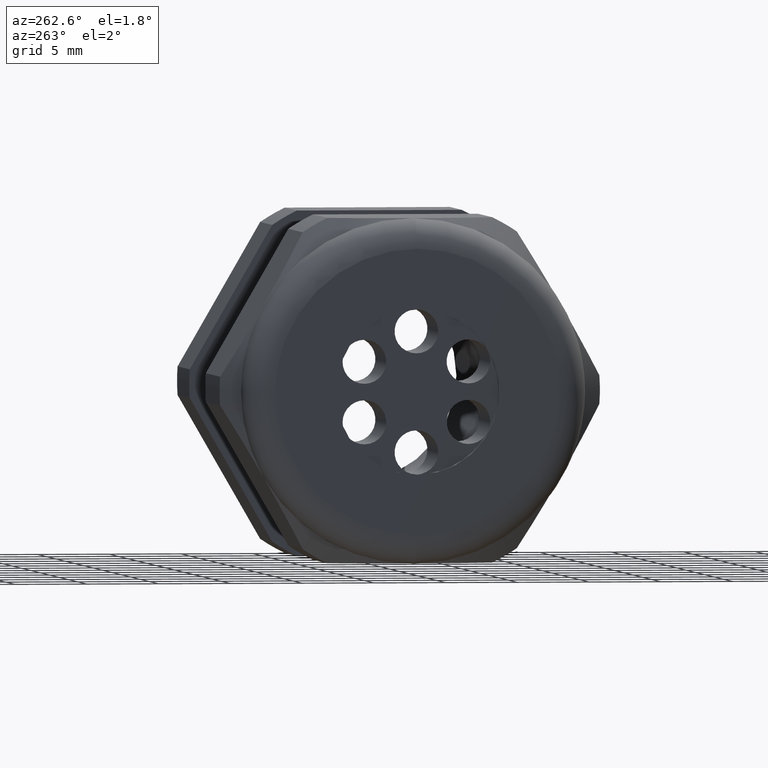
[diagram: clean part render]
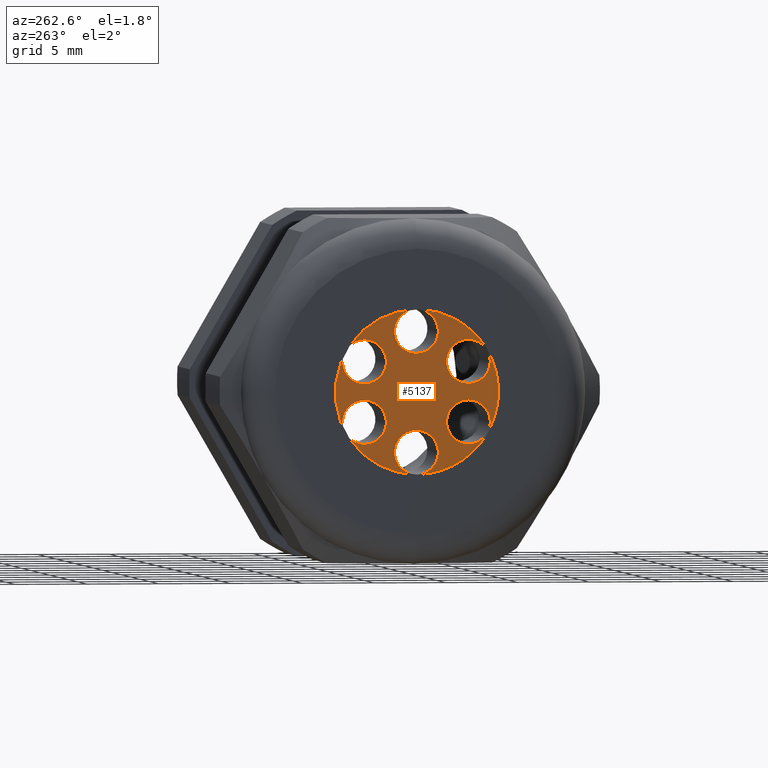
[diagram: same view with one face highlighted and labeled with its STEP entity id]
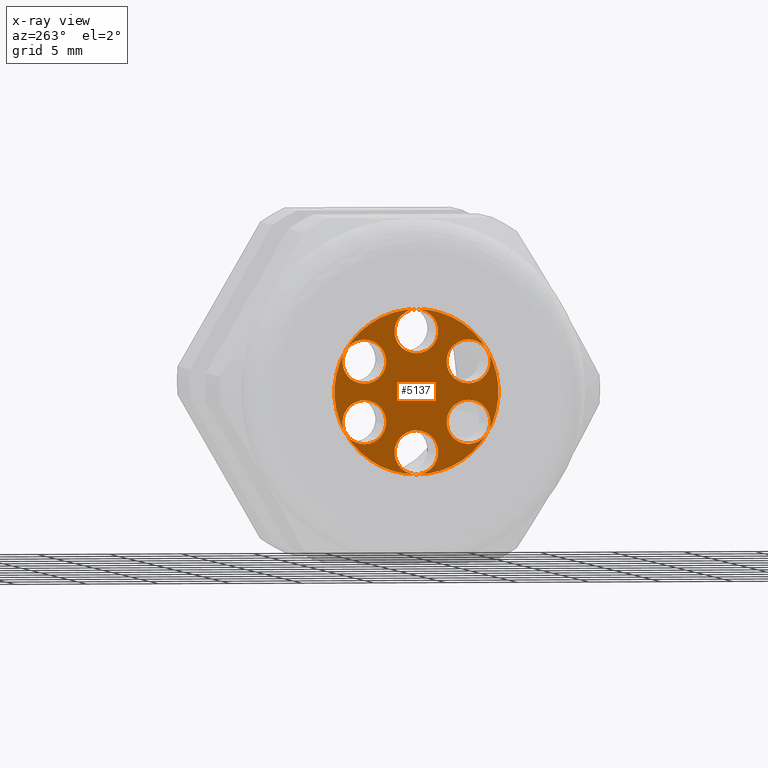
[diagram: x-ray of the same camera — body ghosted, the highlighted face saturated]
A machine part, auxiliary view. The second image highlights one B-rep face of the part: STEP entity #5137.
The next image is the same camera in x-ray: the body ghosted, the highlighted face saturated — about 0% of this face is hidden behind the body in this view.
In plain terms, the highlighted planar face has unit normal (-1, 0, 0).
Its self-contained STEP definition (entity closure, byte-faithful):
#94 = EDGE_CURVE ( 'NONE', #3335, #5071, #4545, .T. ) ;
#95 = ORIENTED_EDGE ( 'NONE', *, *, #3344, .F. ) ;
#99 = EDGE_CURVE ( 'NONE', #5101, #3434, #4599, .T. ) ;
#100 = ORIENTED_EDGE ( 'NONE', *, *, #99, .F. ) ;
#104 = ORIENTED_EDGE ( 'NONE', *, *, #94, .F. ) ;
#110 = EDGE_LOOP ( 'NONE', ( #104, #95 ) ) ;
#113 = ORIENTED_EDGE ( 'NONE', *, *, #3436, .F. ) ;
#122 = EDGE_LOOP ( 'NONE', ( #127, #126 ) ) ;
#126 = ORIENTED_EDGE ( 'NONE', *, *, #3438, .T. ) ;
#127 = ORIENTED_EDGE ( 'NONE', *, *, #5129, .T. ) ;
#713 = DIRECTION ( 'NONE',  ( 0.0000000000000000000, 0.0000000000000000000, 1.000000000000000000 ) ) ;
#714 = DIRECTION ( 'NONE',  ( -1.000000000000000000, 0.0000000000000000000, 0.0000000000000000000 ) ) ;
#715 = CARTESIAN_POINT ( 'NONE',  ( -1.350000000000000100, 0.0000000000000000000, -0.1647599999999999900 ) ) ;
#716 = AXIS2_PLACEMENT_3D ( 'NONE', #715, #714, #713 ) ;
#717 = CIRCLE ( 'NONE', #716, 0.06000000000000001200 ) ;
#718 = CARTESIAN_POINT ( 'NONE',  ( -1.350000000000000100, -0.1426863455275237400, 0.02238000000000066300 ) ) ;
#721 = CARTESIAN_POINT ( 'NONE',  ( -1.350000000000000100, 0.0000000000000000000, -0.1047599999999999800 ) ) ;
#773 = CARTESIAN_POINT ( 'NONE',  ( -1.350000000000000100, 0.1426863455275231600, -0.1423800000000016700 ) ) ;
#789 = CARTESIAN_POINT ( 'NONE',  ( -1.350000000000000100, -0.1426863455275237400, 0.1423800000000007000 ) ) ;
#790 = DIRECTION ( 'NONE',  ( 0.0000000000000000000, 0.8660254037844362700, -0.5000000000000041100 ) ) ;
#791 = DIRECTION ( 'NONE',  ( -1.000000000000000000, 0.0000000000000000000, 0.0000000000000000000 ) ) ;
#792 = CARTESIAN_POINT ( 'NONE',  ( -1.350000000000000100, -0.1426863455275237400, 0.08238000000000067500 ) ) ;
#793 = AXIS2_PLACEMENT_3D ( 'NONE', #792, #791, #790 ) ;
#794 = CIRCLE ( 'NONE', #793, 0.06000000000000002600 ) ;
#826 = CARTESIAN_POINT ( 'NONE',  ( -1.350000000000000100, 0.1426863455275231600, -0.02238000000000163500 ) ) ;
#827 = DIRECTION ( 'NONE',  ( 0.0000000000000000000, -0.8660254037844328200, 0.5000000000000102100 ) ) ;
#828 = DIRECTION ( 'NONE',  ( -1.000000000000000000, 0.0000000000000000000, 0.0000000000000000000 ) ) ;
#829 = CARTESIAN_POINT ( 'NONE',  ( -1.350000000000000100, 0.1426863455275231600, -0.08238000000000164600 ) ) ;
#830 = AXIS2_PLACEMENT_3D ( 'NONE', #829, #828, #827 ) ;
#831 = CIRCLE ( 'NONE', #830, 0.06000000000000001200 ) ;
#856 = DIRECTION ( 'NONE',  ( 0.0000000000000000000, -0.8660254037844432600, -0.4999999999999919500 ) ) ;
#857 = DIRECTION ( 'NONE',  ( -1.000000000000000000, 0.0000000000000000000, 0.0000000000000000000 ) ) ;
#858 = CARTESIAN_POINT ( 'NONE',  ( -1.350000000000000100, 0.1426863455275248800, 0.08237999999999866300 ) ) ;
#859 = AXIS2_PLACEMENT_3D ( 'NONE', #858, #857, #856 ) ;
#860 = CIRCLE ( 'NONE', #859, 0.06000000000000001900 ) ;
#862 = CARTESIAN_POINT ( 'NONE',  ( -1.350000000000000100, 1.157861477947647800E-015, 0.1047599999999999600 ) ) ;
#866 = DIRECTION ( 'NONE',  ( -1.000000000000000000, 0.0000000000000000000, 0.0000000000000000000 ) ) ;
#867 = CARTESIAN_POINT ( 'NONE',  ( -1.350000000000000100, 0.0000000000000000000, 0.0000000000000000000 ) ) ;
#868 = AXIS2_PLACEMENT_3D ( 'NONE', #867, #866, #931 ) ;
#869 = CIRCLE ( 'NONE', #868, 0.2249999999999999800 ) ;
#872 = DIRECTION ( 'NONE',  ( 0.0000000000000000000, 0.8660254037844398200, 0.4999999999999980000 ) ) ;
#873 = DIRECTION ( 'NONE',  ( -1.000000000000000000, 0.0000000000000000000, 0.0000000000000000000 ) ) ;
#874 = CARTESIAN_POINT ( 'NONE',  ( -1.350000000000000100, -0.1426863455275242900, -0.08237999999999967600 ) ) ;
#875 = AXIS2_PLACEMENT_3D ( 'NONE', #874, #873, #872 ) ;
#876 = CIRCLE ( 'NONE', #875, 0.06000000000000001200 ) ;
#877 = CARTESIAN_POINT ( 'NONE',  ( -1.350000000000000100, -0.1426863455275242900, -0.1423799999999997000 ) ) ;
#929 = CARTESIAN_POINT ( 'NONE',  ( -1.350000000000000100, 0.0000000000000000000, 0.2249999999999999800 ) ) ;
#930 = CARTESIAN_POINT ( 'NONE',  ( -1.350000000000000100, 2.755455298081544500E-017, -0.2249999999999999800 ) ) ;
#931 = DIRECTION ( 'NONE',  ( 0.0000000000000000000, 0.0000000000000000000, 1.000000000000000000 ) ) ;
#2594 = DIRECTION ( 'NONE',  ( 0.0000000000000000000, -0.8660254037844432600, -0.4999999999999919500 ) ) ;
#2595 = DIRECTION ( 'NONE',  ( -1.000000000000000000, 0.0000000000000000000, 0.0000000000000000000 ) ) ;
#2596 = CARTESIAN_POINT ( 'NONE',  ( -1.350000000000000100, 0.1426863455275248800, 0.08237999999999866300 ) ) ;
#2597 = AXIS2_PLACEMENT_3D ( 'NONE', #2596, #2595, #2594 ) ;
#2598 = CIRCLE ( 'NONE', #2597, 0.06000000000000001900 ) ;
#2600 = DIRECTION ( 'NONE',  ( 0.0000000000000000000, -6.982966722218764900E-015, -1.000000000000000000 ) ) ;
#2601 = DIRECTION ( 'NONE',  ( -1.000000000000000000, 0.0000000000000000000, 0.0000000000000000000 ) ) ;
#2602 = CARTESIAN_POINT ( 'NONE',  ( -1.350000000000000100, 1.150513597152763700E-015, 0.1647599999999999900 ) ) ;
#2603 = AXIS2_PLACEMENT_3D ( 'NONE', #2602, #2601, #2600 ) ;
#2609 = CIRCLE ( 'NONE', #2603, 0.06000000000000001200 ) ;
#2614 = DIRECTION ( 'NONE',  ( 0.0000000000000000000, 0.8660254037844362700, -0.5000000000000041100 ) ) ;
#2615 = DIRECTION ( 'NONE',  ( -1.000000000000000000, 0.0000000000000000000, 0.0000000000000000000 ) ) ;
#2616 = CARTESIAN_POINT ( 'NONE',  ( -1.350000000000000100, -0.1426863455275237400, 0.08238000000000067500 ) ) ;
#2617 = AXIS2_PLACEMENT_3D ( 'NONE', #2616, #2615, #2614 ) ;
#2618 = CIRCLE ( 'NONE', #2617, 0.06000000000000002600 ) ;
#2881 = CARTESIAN_POINT ( 'NONE',  ( -1.350000000000000100, 7.347880794884121500E-018, -0.2247600000000000400 ) ) ;
#2883 = DIRECTION ( 'NONE',  ( 0.0000000000000000000, -6.982966722218764900E-015, -1.000000000000000000 ) ) ;
#2884 = DIRECTION ( 'NONE',  ( -1.000000000000000000, 0.0000000000000000000, 0.0000000000000000000 ) ) ;
#2885 = CARTESIAN_POINT ( 'NONE',  ( -1.350000000000000100, 1.150513597152763700E-015, 0.1647599999999999900 ) ) ;
#2886 = AXIS2_PLACEMENT_3D ( 'NONE', #2885, #2884, #2883 ) ;
#2887 = CIRCLE ( 'NONE', #2886, 0.06000000000000001200 ) ;
#2888 = CARTESIAN_POINT ( 'NONE',  ( -1.350000000000000100, 0.1426863455275248800, 0.1423799999999987000 ) ) ;
#2889 = CARTESIAN_POINT ( 'NONE',  ( -1.350000000000000100, 1.150513597152763700E-015, 0.2247600000000000400 ) ) ;
#2924 = CARTESIAN_POINT ( 'NONE',  ( -1.350000000000000100, 0.1426863455275248800, 0.02237999999999864100 ) ) ;
#2949 = CARTESIAN_POINT ( 'NONE',  ( -1.350000000000000100, -0.1426863455275242900, -0.02237999999999965400 ) ) ;
#2965 = DIRECTION ( 'NONE',  ( 0.0000000000000000000, -0.8660254037844328200, 0.5000000000000102100 ) ) ;
#2966 = DIRECTION ( 'NONE',  ( -1.000000000000000000, 0.0000000000000000000, 0.0000000000000000000 ) ) ;
#2967 = CARTESIAN_POINT ( 'NONE',  ( -1.350000000000000100, 0.1426863455275231600, -0.08238000000000164600 ) ) ;
#2968 = AXIS2_PLACEMENT_3D ( 'NONE', #2967, #2966, #2965 ) ;
#2969 = CIRCLE ( 'NONE', #2968, 0.06000000000000001200 ) ;
#3000 = DIRECTION ( 'NONE',  ( 0.0000000000000000000, 0.0000000000000000000, 1.000000000000000000 ) ) ;
#3001 = DIRECTION ( 'NONE',  ( -1.000000000000000000, 0.0000000000000000000, 0.0000000000000000000 ) ) ;
#3002 = CARTESIAN_POINT ( 'NONE',  ( -1.350000000000000100, 0.0000000000000000000, 0.0000000000000000000 ) ) ;
#3003 = AXIS2_PLACEMENT_3D ( 'NONE', #3002, #3001, #3000 ) ;
#3005 = PLANE ( 'NONE',  #3003 ) ;
#3006 = FACE_OUTER_BOUND ( 'NONE', #122, .T. ) ;
#3007 = FACE_BOUND ( 'NONE', #110, .T. ) ;
#3008 = FACE_BOUND ( 'NONE', #4913, .T. ) ;
#3009 = FACE_BOUND ( 'NONE', #4927, .T. ) ;
#3010 = FACE_BOUND ( 'NONE', #4933, .T. ) ;
#3011 = FACE_BOUND ( 'NONE', #4919, .T. ) ;
#3012 = FACE_BOUND ( 'NONE', #5121, .T. ) ;
#3020 = DIRECTION ( 'NONE',  ( 0.0000000000000000000, 0.0000000000000000000, 1.000000000000000000 ) ) ;
#3021 = DIRECTION ( 'NONE',  ( -1.000000000000000000, 0.0000000000000000000, 0.0000000000000000000 ) ) ;
#3022 = CARTESIAN_POINT ( 'NONE',  ( -1.350000000000000100, 0.0000000000000000000, 0.0000000000000000000 ) ) ;
#3023 = AXIS2_PLACEMENT_3D ( 'NONE', #3022, #3021, #3020 ) ;
#3024 = CIRCLE ( 'NONE', #3023, 0.2249999999999999800 ) ;
#3335 = VERTEX_POINT ( 'NONE', #721 ) ;
#3341 = VERTEX_POINT ( 'NONE', #718 ) ;
#3344 = EDGE_CURVE ( 'NONE', #5071, #3335, #717, .T. ) ;
#3374 = EDGE_CURVE ( 'NONE', #3341, #3375, #794, .T. ) ;
#3375 = VERTEX_POINT ( 'NONE', #789 ) ;
#3384 = VERTEX_POINT ( 'NONE', #773 ) ;
#3389 = EDGE_CURVE ( 'NONE', #3384, #3390, #831, .T. ) ;
#3390 = VERTEX_POINT ( 'NONE', #826 ) ;
#3407 = VERTEX_POINT ( 'NONE', #862 ) ;
#3409 = EDGE_CURVE ( 'NONE', #5080, #5067, #860, .T. ) ;
#3434 = VERTEX_POINT ( 'NONE', #877 ) ;
#3436 = EDGE_CURVE ( 'NONE', #3434, #5101, #876, .T. ) ;
#3438 = EDGE_CURVE ( 'NONE', #3439, #3440, #869, .T. ) ;
#3439 = VERTEX_POINT ( 'NONE', #930 ) ;
#3440 = VERTEX_POINT ( 'NONE', #929 ) ;
#4542 = DIRECTION ( 'NONE',  ( -1.000000000000000000, 0.0000000000000000000, 0.0000000000000000000 ) ) ;
#4543 = CARTESIAN_POINT ( 'NONE',  ( -1.350000000000000100, 0.0000000000000000000, -0.1647599999999999900 ) ) ;
#4544 = AXIS2_PLACEMENT_3D ( 'NONE', #4543, #4542, #4608 ) ;
#4545 = CIRCLE ( 'NONE', #4544, 0.06000000000000001200 ) ;
#4596 = DIRECTION ( 'NONE',  ( 0.0000000000000000000, 0.8660254037844398200, 0.4999999999999980000 ) ) ;
#4597 = DIRECTION ( 'NONE',  ( -1.000000000000000000, 0.0000000000000000000, 0.0000000000000000000 ) ) ;
#4598 = AXIS2_PLACEMENT_3D ( 'NONE', #4604, #4597, #4596 ) ;
#4599 = CIRCLE ( 'NONE', #4598, 0.06000000000000001200 ) ;
#4604 = CARTESIAN_POINT ( 'NONE',  ( -1.350000000000000100, -0.1426863455275242900, -0.08237999999999967600 ) ) ;
#4608 = DIRECTION ( 'NONE',  ( 0.0000000000000000000, 0.0000000000000000000, 1.000000000000000000 ) ) ;
#4910 = ORIENTED_EDGE ( 'NONE', *, *, #3374, .F. ) ;
#4913 = EDGE_LOOP ( 'NONE', ( #100, #113 ) ) ;
#4916 = ORIENTED_EDGE ( 'NONE', *, *, #3409, .F. ) ;
#4917 = EDGE_CURVE ( 'NONE', #3375, #3341, #2618, .T. ) ;
#4919 = EDGE_LOOP ( 'NONE', ( #4928, #4916 ) ) ;
#4920 = EDGE_CURVE ( 'NONE', #5065, #3407, #2609, .T. ) ;
#4921 = ORIENTED_EDGE ( 'NONE', *, *, #3389, .F. ) ;
#4923 = EDGE_CURVE ( 'NONE', #5067, #5080, #2598, .T. ) ;
#4924 = ORIENTED_EDGE ( 'NONE', *, *, #4917, .F. ) ;
#4926 = ORIENTED_EDGE ( 'NONE', *, *, #4920, .F. ) ;
#4927 = EDGE_LOOP ( 'NONE', ( #4924, #4910 ) ) ;
#4928 = ORIENTED_EDGE ( 'NONE', *, *, #4923, .F. ) ;
#4929 = ORIENTED_EDGE ( 'NONE', *, *, #5068, .F. ) ;
#4933 = EDGE_LOOP ( 'NONE', ( #4926, #4929 ) ) ;
#5065 = VERTEX_POINT ( 'NONE', #2889 ) ;
#5067 = VERTEX_POINT ( 'NONE', #2888 ) ;
#5068 = EDGE_CURVE ( 'NONE', #3407, #5065, #2887, .T. ) ;
#5071 = VERTEX_POINT ( 'NONE', #2881 ) ;
#5080 = VERTEX_POINT ( 'NONE', #2924 ) ;
#5101 = VERTEX_POINT ( 'NONE', #2949 ) ;
#5121 = EDGE_LOOP ( 'NONE', ( #5132, #4921 ) ) ;
#5123 = EDGE_CURVE ( 'NONE', #3390, #3384, #2969, .T. ) ;
#5129 = EDGE_CURVE ( 'NONE', #3440, #3439, #3024, .T. ) ;
#5132 = ORIENTED_EDGE ( 'NONE', *, *, #5123, .F. ) ;
#5137 = ADVANCED_FACE ( 'NONE', ( #3012, #3011, #3010, #3009, #3008, #3007, #3006 ), #3005, .T. ) ;